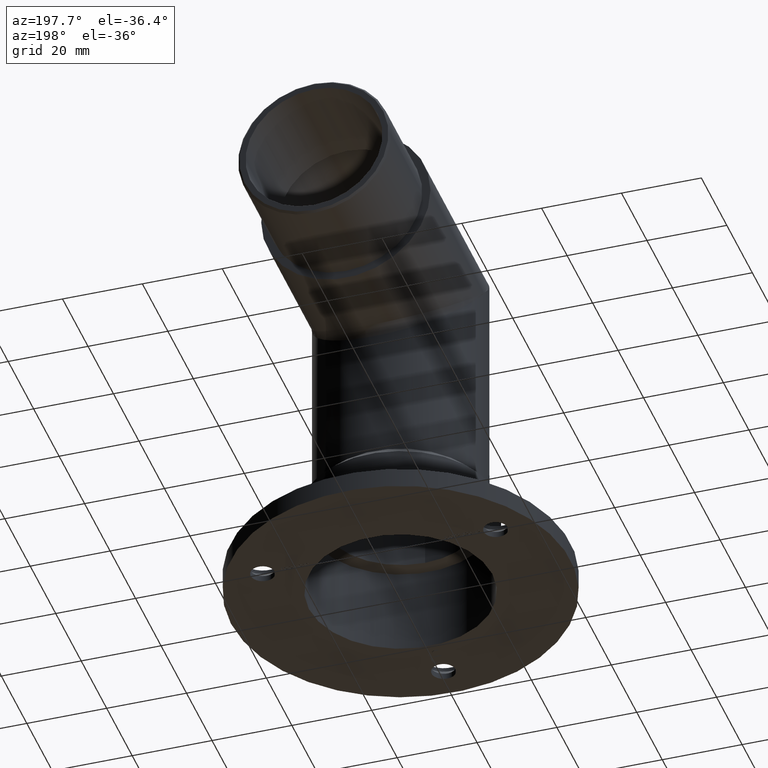
[diagram: clean part render]
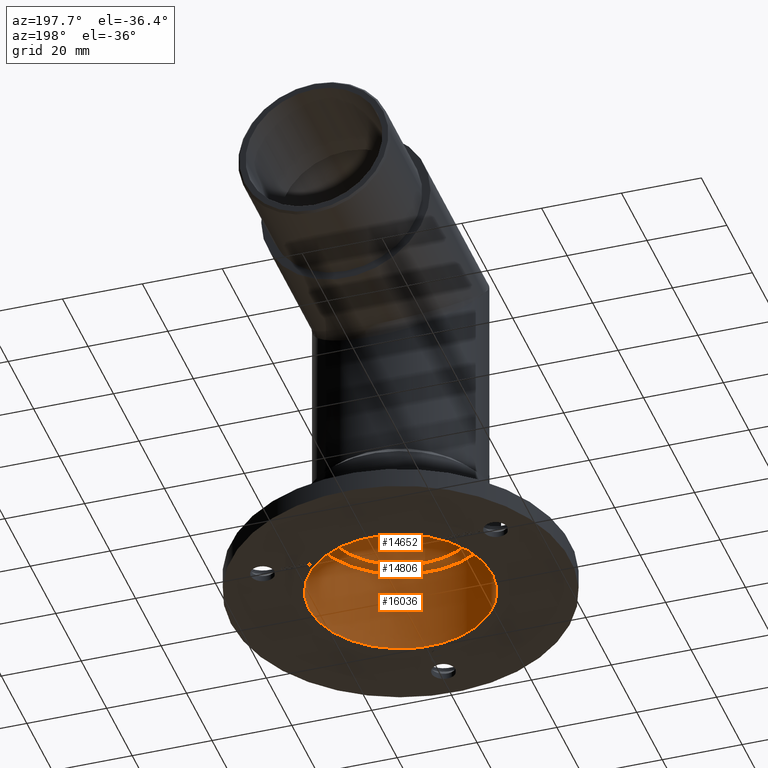
[diagram: same view with one multi-face feature highlighted, each face labeled with its STEP entity id]
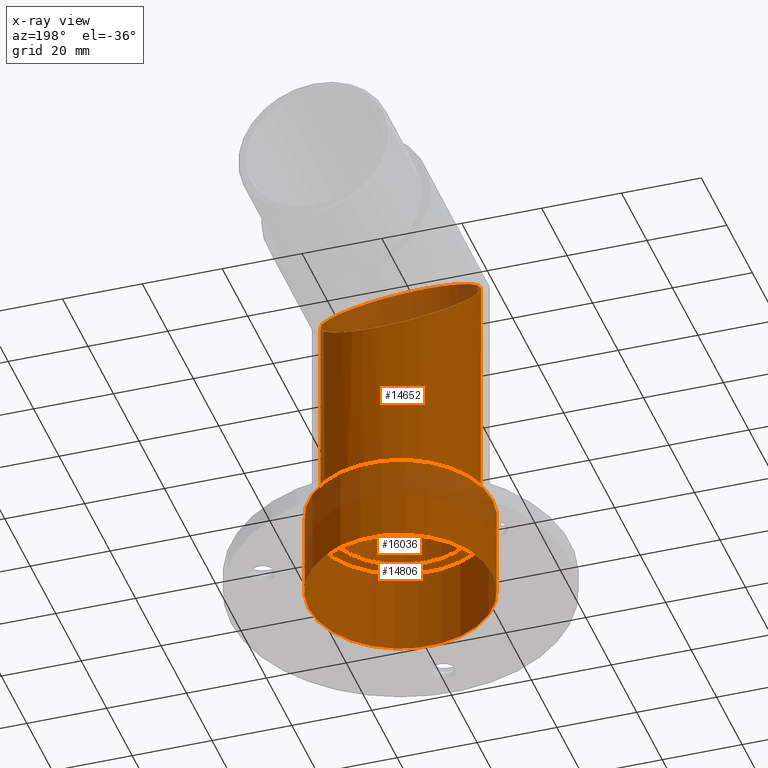
[diagram: x-ray of the same camera — body ghosted, the whole feature saturated]
A machine part, auxiliary view. The highlighted faces form ONE feature: a stepped (counterbored) hole: 2 coaxial cylindrical walls of radii 19.2 -> 23 mm joined by 1 annular planar shoulder face(s). The faces share edges in the B-rep.
The next image is the same camera in x-ray: the body ghosted and the whole hole feature saturated, so the bore chain is visible through the body.
Their STEP definitions:
[1] entity #16036 (Cylinder):
#251 = EDGE_CURVE ( 'NONE', #11692, #11692, #3615, .T. ) ;
#265 = CARTESIAN_POINT ( 'NONE',  ( 23.00000000000000355, 0.000000000000000000, 21.99999999999999289 ) ) ;
#450 = CARTESIAN_POINT ( 'NONE',  ( 0.000000000000000000, 0.000000000000000000, 89.05382386916238602 ) ) ;
#682 = DIRECTION ( 'NONE',  ( -0.000000000000000000, -0.000000000000000000, -1.000000000000000000 ) ) ;
#1588 = FACE_OUTER_BOUND ( 'NONE', #4014, .T. ) ;
#2819 = AXIS2_PLACEMENT_3D ( 'NONE', #7103, #13416, #10902 ) ;
#3125 = ORIENTED_EDGE ( 'NONE', *, *, #7205, .T. ) ;
#3615 = CIRCLE ( 'NONE', #5202, 23.00000000000000355 ) ;
#4014 = EDGE_LOOP ( 'NONE', ( #11365 ) ) ;
#4332 = DIRECTION ( 'NONE',  ( -0.000000000000000000, -0.000000000000000000, -1.000000000000000000 ) ) ;
#5202 = AXIS2_PLACEMENT_3D ( 'NONE', #12111, #4332, #14577 ) ;
#6337 = VERTEX_POINT ( 'NONE', #14189 ) ;
#6351 = FACE_OUTER_BOUND ( 'NONE', #6845, .T. ) ;
#6845 = EDGE_LOOP ( 'NONE', ( #3125 ) ) ;
#7103 = CARTESIAN_POINT ( 'NONE',  ( 0.000000000000000000, 0.000000000000000000, 0.000000000000000000 ) ) ;
#7205 = EDGE_CURVE ( 'NONE', #6337, #6337, #14584, .T. ) ;
#7994 = AXIS2_PLACEMENT_3D ( 'NONE', #450, #682, #14616 ) ;
#10902 = DIRECTION ( 'NONE',  ( -1.000000000000000000, 0.000000000000000000, 0.000000000000000000 ) ) ;
#11365 = ORIENTED_EDGE ( 'NONE', *, *, #251, .F. ) ;
#11692 = VERTEX_POINT ( 'NONE', #265 ) ;
#12111 = CARTESIAN_POINT ( 'NONE',  ( 0.000000000000000000, 0.000000000000000000, 21.99999999999999289 ) ) ;
#13416 = DIRECTION ( 'NONE',  ( 0.000000000000000000, 0.000000000000000000, -1.000000000000000000 ) ) ;
#14189 = CARTESIAN_POINT ( 'NONE',  ( -23.00000000000000355, 0.000000000000000000, 0.000000000000000000 ) ) ;
#14577 = DIRECTION ( 'NONE',  ( 1.000000000000000000, 0.000000000000000000, 0.000000000000000000 ) ) ;
#14584 = CIRCLE ( 'NONE', #2819, 23.00000000000000355 ) ;
#14616 = DIRECTION ( 'NONE',  ( -1.000000000000000000, 0.000000000000000000, 0.000000000000000000 ) ) ;
#15498 = CYLINDRICAL_SURFACE ( 'NONE', #7994, 23.00000000000000355 ) ;
#16036 = ADVANCED_FACE ( 'NONE', ( #6351, #1588 ), #15498, .F. ) ;
[2] entity #14652 (Cylinder):
#1079 = DIRECTION ( 'NONE',  ( 0.000000000000000000, 0.000000000000000000, -1.000000000000000000 ) ) ;
#1309 = EDGE_LOOP ( 'NONE', ( #12738 ) ) ;
#1835 = CARTESIAN_POINT ( 'NONE',  ( 0.000000000000000000, -19.20000000000001350, 103.2000000000000171 ) ) ;
#3007 = DIRECTION ( 'NONE',  ( 0.000000000000000000, -1.000000000000000000, -1.807003620809173892E-16 ) ) ;
#3388 = VERTEX_POINT ( 'NONE', #10364 ) ;
#3684 = FACE_OUTER_BOUND ( 'NONE', #4831, .T. ) ;
#3721 = DIRECTION ( 'NONE',  ( -1.000000000000000000, 0.000000000000000000, 0.000000000000000000 ) ) ;
#4220 = EDGE_CURVE ( 'NONE', #9160, #9160, #5400, .T. ) ;
#4304 = DIRECTION ( 'NONE',  ( 0.000000000000000000, -1.224646799147353207E-16, 1.000000000000000000 ) ) ;
#4473 = CARTESIAN_POINT ( 'NONE',  ( -38.39999999999999858, 19.20000000000000284, 64.80000000000002558 ) ) ;
#4831 = EDGE_LOOP ( 'NONE', ( #6612 ) ) ;
#5400 =( BOUNDED_CURVE ( )  B_SPLINE_CURVE ( 3, ( #5749, #5813, #14730, #13260, #4473, #9519, #1835 ),
 .UNSPECIFIED., .T., .T. ) 
 B_SPLINE_CURVE_WITH_KNOTS ( ( 4, 3, 4 ),
 ( 0.000000000000000000, 3.141592653589793116, 6.283185307179586232 ),
 .UNSPECIFIED. ) 
 CURVE ( )  GEOMETRIC_REPRESENTATION_ITEM ( )  RATIONAL_B_SPLINE_CURVE ( ( 1.000000000000000000, 0.3333333333333333703, 0.3333333333333333703, 1.000000000000000000, 0.3333333333333333703, 0.3333333333333333703, 1.000000000000000000 ) ) 
 REPRESENTATION_ITEM ( '' )  );
#5657 = FACE_OUTER_BOUND ( 'NONE', #1309, .T. ) ;
#5749 = CARTESIAN_POINT ( 'NONE',  ( 0.000000000000000000, -19.20000000000001350, 103.2000000000000171 ) ) ;
#5813 = CARTESIAN_POINT ( 'NONE',  ( 38.39999999999999858, -19.20000000000001350, 103.2000000000000313 ) ) ;
#6052 = AXIS2_PLACEMENT_3D ( 'NONE', #10650, #4304, #3007 ) ;
#6297 = EDGE_CURVE ( 'NONE', #3388, #3388, #14380, .T. ) ;
#6612 = ORIENTED_EDGE ( 'NONE', *, *, #4220, .T. ) ;
#7988 = CARTESIAN_POINT ( 'NONE',  ( 0.000000000000000000, -19.20000000000001350, 103.2000000000000171 ) ) ;
#9160 = VERTEX_POINT ( 'NONE', #7988 ) ;
#9519 = CARTESIAN_POINT ( 'NONE',  ( -38.39999999999999858, -19.20000000000001350, 103.2000000000000313 ) ) ;
#10058 = CYLINDRICAL_SURFACE ( 'NONE', #6052, 19.20000000000000284 ) ;
#10364 = CARTESIAN_POINT ( 'NONE',  ( -19.20000000000000284, 0.000000000000000000, 22.00000000000000000 ) ) ;
#10650 = CARTESIAN_POINT ( 'NONE',  ( 0.000000000000000000, 0.000000000000000000, 24.00000000000000000 ) ) ;
#12738 = ORIENTED_EDGE ( 'NONE', *, *, #6297, .T. ) ;
#13260 = CARTESIAN_POINT ( 'NONE',  ( 2.351321854362918079E-15, 19.19999999999999929, 64.80000000000002558 ) ) ;
#13553 = AXIS2_PLACEMENT_3D ( 'NONE', #13991, #1079, #3721 ) ;
#13991 = CARTESIAN_POINT ( 'NONE',  ( 0.000000000000000000, 0.000000000000000000, 22.00000000000000000 ) ) ;
#14380 = CIRCLE ( 'NONE', #13553, 19.20000000000000284 ) ;
#14652 = ADVANCED_FACE ( 'NONE', ( #3684, #5657 ), #10058, .F. ) ;
#14730 = CARTESIAN_POINT ( 'NONE',  ( 38.39999999999999858, 19.19999999999999218, 64.80000000000002558 ) ) ;
[3] entity #14806 (Plane):
#251 = EDGE_CURVE ( 'NONE', #11692, #11692, #3615, .T. ) ;
#265 = CARTESIAN_POINT ( 'NONE',  ( 23.00000000000000355, 0.000000000000000000, 21.99999999999999289 ) ) ;
#551 = DIRECTION ( 'NONE',  ( 1.000000000000000000, 0.000000000000000000, -0.000000000000000000 ) ) ;
#1079 = DIRECTION ( 'NONE',  ( 0.000000000000000000, 0.000000000000000000, -1.000000000000000000 ) ) ;
#2873 = EDGE_LOOP ( 'NONE', ( #6551 ) ) ;
#3388 = VERTEX_POINT ( 'NONE', #10364 ) ;
#3615 = CIRCLE ( 'NONE', #5202, 23.00000000000000355 ) ;
#3721 = DIRECTION ( 'NONE',  ( -1.000000000000000000, 0.000000000000000000, 0.000000000000000000 ) ) ;
#4332 = DIRECTION ( 'NONE',  ( -0.000000000000000000, -0.000000000000000000, -1.000000000000000000 ) ) ;
#5202 = AXIS2_PLACEMENT_3D ( 'NONE', #12111, #4332, #14577 ) ;
#5343 = EDGE_LOOP ( 'NONE', ( #8306 ) ) ;
#5796 = PLANE ( 'NONE',  #10938 ) ;
#6297 = EDGE_CURVE ( 'NONE', #3388, #3388, #14380, .T. ) ;
#6551 = ORIENTED_EDGE ( 'NONE', *, *, #251, .T. ) ;
#8181 = DIRECTION ( 'NONE',  ( 0.000000000000000000, 0.000000000000000000, 1.000000000000000000 ) ) ;
#8306 = ORIENTED_EDGE ( 'NONE', *, *, #6297, .F. ) ;
#10364 = CARTESIAN_POINT ( 'NONE',  ( -19.20000000000000284, 0.000000000000000000, 22.00000000000000000 ) ) ;
#10832 = FACE_OUTER_BOUND ( 'NONE', #2873, .T. ) ;
#10938 = AXIS2_PLACEMENT_3D ( 'NONE', #15975, #8181, #551 ) ;
#11692 = VERTEX_POINT ( 'NONE', #265 ) ;
#12111 = CARTESIAN_POINT ( 'NONE',  ( 0.000000000000000000, 0.000000000000000000, 21.99999999999999289 ) ) ;
#13553 = AXIS2_PLACEMENT_3D ( 'NONE', #13991, #1079, #3721 ) ;
#13991 = CARTESIAN_POINT ( 'NONE',  ( 0.000000000000000000, 0.000000000000000000, 22.00000000000000000 ) ) ;
#14207 = FACE_BOUND ( 'NONE', #5343, .T. ) ;
#14380 = CIRCLE ( 'NONE', #13553, 19.20000000000000284 ) ;
#14577 = DIRECTION ( 'NONE',  ( 1.000000000000000000, 0.000000000000000000, 0.000000000000000000 ) ) ;
#14806 = ADVANCED_FACE ( 'NONE', ( #14207, #10832 ), #5796, .F. ) ;
#15975 = CARTESIAN_POINT ( 'NONE',  ( 0.000000000000000000, 0.000000000000000000, 22.00000000000000000 ) ) ;